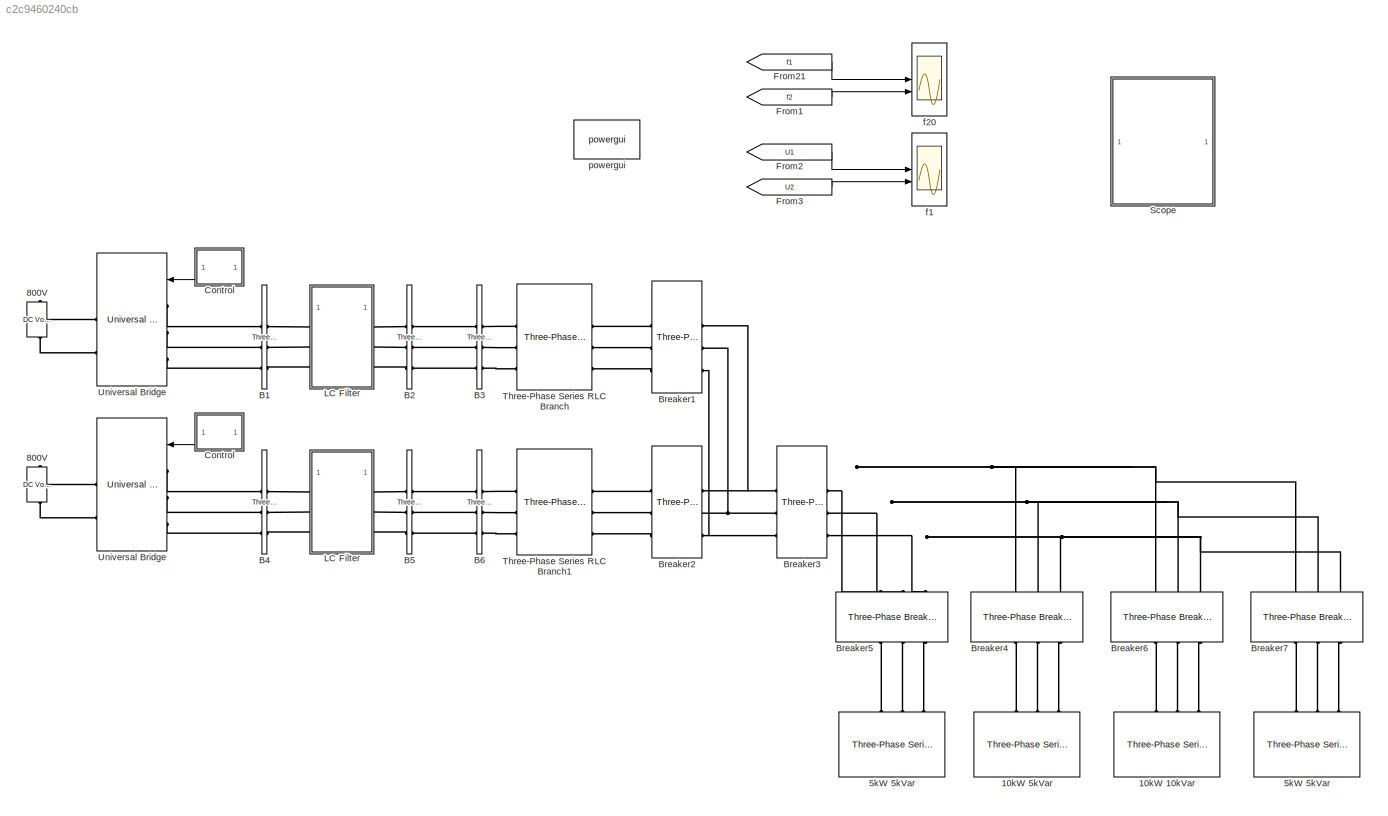
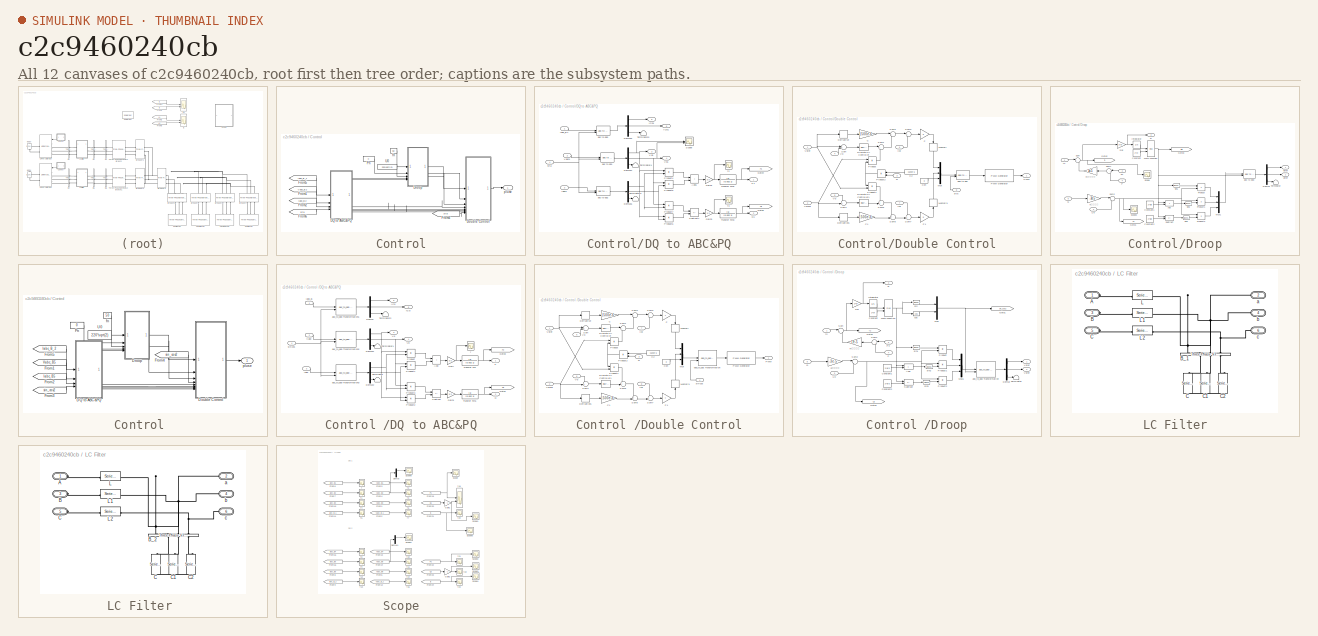
[diagram: thumbnail index - all 12 canvases of the model, root first then tree order]
MODEL slx_c2c9460240cb
KIND model
CONFIG AbsTol = auto
CONFIG EnableMultiTasking = on
CONFIG FixedStep = auto
CONFIG MaxStep = auto
CONFIG MinStep = auto
CONFIG RelTol = 1e-3
CONFIG SampleTimeConstraint = Unconstrained
CONFIG SolverName = ode113
CONFIG StartTime = 0.0
CONFIG StopTime = 1.5
BLOCK [Reference] 10kW 10kVar  REF=spsThreePhaseSeriesRLCLoadLib/Three-Phase
Series RLC Load
  AttributesFormatString = \n
  NameLocation = right
  SourceBlock = spsThreePhaseSeriesRLCLoadLib/Three-Phase\nSeries RLC Load
  SourceType = Three-Phase Series RLC Load
BLOCK [Reference] 10kW 5kVar  REF=spsThreePhaseSeriesRLCLoadLib/Three-Phase
Series RLC Load
  AttributesFormatString = \n
  NameLocation = right
  SourceBlock = spsThreePhaseSeriesRLCLoadLib/Three-Phase\nSeries RLC Load
  SourceType = Three-Phase Series RLC Load
BLOCK [Reference] 5kW 5kVar  REF=spsThreePhaseSeriesRLCLoadLib/Three-Phase
Series RLC Load
  AttributesFormatString = \n
  NameLocation = right
  SourceBlock = spsThreePhaseSeriesRLCLoadLib/Three-Phase\nSeries RLC Load
  SourceType = Three-Phase Series RLC Load
BLOCK [Reference] 5kW 5kVar   REF=spsThreePhaseSeriesRLCLoadLib/Three-Phase
Series RLC Load
  AttributesFormatString = \n
  NameLocation = right
  SourceBlock = spsThreePhaseSeriesRLCLoadLib/Three-Phase\nSeries RLC Load
  SourceType = Three-Phase Series RLC Load
BLOCK [Reference] 800V  REF=spsDCVoltageSourceLib/DC Voltage Source
  NameLocation = right
  SourceBlock = spsDCVoltageSourceLib/DC Voltage Source
  SourceType = DC Voltage Source
BLOCK [Reference] 800V   REF=spsDCVoltageSourceLib/DC Voltage Source
  NameLocation = right
  SourceBlock = spsDCVoltageSourceLib/DC Voltage Source
  SourceType = DC Voltage Source
BLOCK [Reference] B1  REF=spsThreePhaseVIMeasurementLib/Three-Phase
V-I Measurement
  SourceBlock = spsThreePhaseVIMeasurementLib/Three-Phase\nV-I Measurement
  SourceType = Three-Phase VI Measurement
BLOCK [Reference] B2  REF=spsThreePhaseVIMeasurementLib/Three-Phase
V-I Measurement
  SourceBlock = spsThreePhaseVIMeasurementLib/Three-Phase\nV-I Measurement
  SourceType = Three-Phase VI Measurement
BLOCK [Reference] B3  REF=spsThreePhaseVIMeasurementLib/Three-Phase
V-I Measurement
  SourceBlock = spsThreePhaseVIMeasurementLib/Three-Phase\nV-I Measurement
  SourceType = Three-Phase VI Measurement
BLOCK [Reference] B4  REF=spsThreePhaseVIMeasurementLib/Three-Phase
V-I Measurement
  SourceBlock = spsThreePhaseVIMeasurementLib/Three-Phase\nV-I Measurement
  SourceType = Three-Phase VI Measurement
BLOCK [Reference] B5  REF=spsThreePhaseVIMeasurementLib/Three-Phase
V-I Measurement
  SourceBlock = spsThreePhaseVIMeasurementLib/Three-Phase\nV-I Measurement
  SourceType = Three-Phase VI Measurement
BLOCK [Reference] B6  REF=spsThreePhaseVIMeasurementLib/Three-Phase
V-I Measurement
  SourceBlock = spsThreePhaseVIMeasurementLib/Three-Phase\nV-I Measurement
  SourceType = Three-Phase VI Measurement
BLOCK [Reference] Breaker1  REF=spsThreePhaseBreakerLib/Three-Phase Breaker
  SourceBlock = spsThreePhaseBreakerLib/Three-Phase Breaker
  SourceType = Three-Phase Breaker
BLOCK [Reference] Breaker2  REF=spsThreePhaseBreakerLib/Three-Phase Breaker
  SourceBlock = spsThreePhaseBreakerLib/Three-Phase Breaker
  SourceType = Three-Phase Breaker
BLOCK [Reference] Breaker3  REF=spsThreePhaseBreakerLib/Three-Phase Breaker
  SourceBlock = spsThreePhaseBreakerLib/Three-Phase Breaker
  SourceType = Three-Phase Breaker
BLOCK [Reference] Breaker4  REF=spsThreePhaseBreakerLib/Three-Phase Breaker
  NameLocation = left
  SourceBlock = spsThreePhaseBreakerLib/Three-Phase Breaker
  SourceType = Three-Phase Breaker
BLOCK [Reference] Breaker5  REF=spsThreePhaseBreakerLib/Three-Phase Breaker
  NameLocation = left
  SourceBlock = spsThreePhaseBreakerLib/Three-Phase Breaker
  SourceType = Three-Phase Breaker
BLOCK [Reference] Breaker6  REF=spsThreePhaseBreakerLib/Three-Phase Breaker
  NameLocation = left
  SourceBlock = spsThreePhaseBreakerLib/Three-Phase Breaker
  SourceType = Three-Phase Breaker
BLOCK [Reference] Breaker7  REF=spsThreePhaseBreakerLib/Three-Phase Breaker
  NameLocation = left
  SourceBlock = spsThreePhaseBreakerLib/Three-Phase Breaker
  SourceType = Three-Phase Breaker
BLOCK [SubSystem] Control
BLOCK [SubSystem] Control 
BLOCK [SubSystem] Control /DQ to ABC&PQ
BLOCK [Sum] Control /DQ to ABC&PQ/Add
  IconShape = rectangular
BLOCK [Demux] Control /DQ to ABC&PQ/Demux
  Outputs = 3
BLOCK [Demux] Control /DQ to ABC&PQ/Demux1
  Outputs = 3
BLOCK [Demux] Control /DQ to ABC&PQ/Demux2
  Outputs = 3
BLOCK [Gain] Control /DQ to ABC&PQ/Gain
  Gain = 3/2
BLOCK [Gain] Control /DQ to ABC&PQ/Gain1
  Gain = 3/2
BLOCK [Goto] Control /DQ to ABC&PQ/Goto1
  GotoTag = Q2
  TagVisibility = global
BLOCK [Goto] Control /DQ to ABC&PQ/Goto3
  GotoTag = P2
  TagVisibility = global
BLOCK [Outport] Control /DQ to ABC&PQ/ICd
  Port = 5
  VectorParamsAs1DForOutWhenUnconnected = off
BLOCK [Outport] Control /DQ to ABC&PQ/ICq
  Port = 6
  VectorParamsAs1DForOutWhenUnconnected = off
BLOCK [Inport] Control /DQ to ABC&PQ/Iabc
  Port = 3
BLOCK [Inport] Control /DQ to ABC&PQ/Iabc_B
BLOCK [Outport] Control /DQ to ABC&PQ/P
  VectorParamsAs1DForOutWhenUnconnected = off
BLOCK [Product] Control /DQ to ABC&PQ/Product
  RndMeth = Zero
BLOCK [Product] Control /DQ to ABC&PQ/Product1
  RndMeth = Zero
BLOCK [Product] Control /DQ to ABC&PQ/Product2
  RndMeth = Zero
BLOCK [Product] Control /DQ to ABC&PQ/Product3
  RndMeth = Zero
BLOCK [Outport] Control /DQ to ABC&PQ/Q
  Port = 2
  VectorParamsAs1DForOutWhenUnconnected = off
BLOCK [Sum] Control /DQ to ABC&PQ/Subtract
  IconShape = rectangular
  Inputs = +-
BLOCK [Terminator] Control /DQ to ABC&PQ/Terminator
BLOCK [Terminator] Control /DQ to ABC&PQ/Terminator1
BLOCK [Terminator] Control /DQ to ABC&PQ/Terminator2
BLOCK [TransferFcn] Control /DQ to ABC&PQ/Transfer Fcn
  Denominator = [0.002 1]
BLOCK [TransferFcn] Control /DQ to ABC&PQ/Transfer Fcn1
  Denominator = [0.002 1]
BLOCK [Inport] Control /DQ to ABC&PQ/Vabc
  Port = 2
BLOCK [Outport] Control /DQ to ABC&PQ/Vd
  Port = 3
  VectorParamsAs1DForOutWhenUnconnected = off
BLOCK [Outport] Control /DQ to ABC&PQ/Vq
  Port = 4
  VectorParamsAs1DForOutWhenUnconnected = off
BLOCK [Reference] Control /DQ to ABC&PQ/abc_to_dq0 Transformation1  REF=powerlib_extras/Measurements/abc_to_dq0
Transformation
  SourceBlock = powerlib_extras/Measurements/abc_to_dq0\nTransformation
  SourceType = abc to dq0 Transformation
BLOCK [Reference] Control /DQ to ABC&PQ/abc_to_dq0 Transformation2  REF=powerlib_extras/Measurements/abc_to_dq0
Transformation
  SourceBlock = powerlib_extras/Measurements/abc_to_dq0\nTransformation
  SourceType = abc to dq0 Transformation
BLOCK [Reference] Control /DQ to ABC&PQ/abc_to_dq0 Transformation3  REF=powerlib_extras/Measurements/abc_to_dq0
Transformation
  SourceBlock = powerlib_extras/Measurements/abc_to_dq0\nTransformation
  SourceType = abc to dq0 Transformation
BLOCK [Scope] Control /DQ to ABC&PQ/f
  Floating = off
  NumInputPorts = 1
  ScopeSpecificationString = C++SS(StrPVP('Location','[35, 156, 1315, 1091]'),StrPVP('Open','off'),MxPVP('AxesTitles',54,'struct(''axes1'',''%<SignalLabel>'')'),MxPVP('ScopeGraphics',57,'struct(''FigureColor'',''[0.5 0.5 0.5]'',''AxesColor'',''[0 0 0]'',''AxesTickColor'',''[1 1 1]'',''LineColors'',''[1 1 0;1 0 1;0 1 1;1 0 0;0 1 0;0 0 1]'',''LineStyles'',''-|-|-|-|-|-'',''LineWidths'',''[0.5 0.5 0.5 0.5 0.5 0.5]'',''MarkerStyl...<+291ch>
BLOCK [Inport] Control /DQ to ABC&PQ/sin-cos
  Port = 4
BLOCK [SubSystem] Control /Double Control
BLOCK [Gain] Control /Double Control/C
  Gain = 1500e-6
BLOCK [Gain] Control /Double Control/C1
  Gain = 1500e-6
BLOCK [Constant] Control /Double Control/C2
  Value = 1500e-6
BLOCK [Constant] Control /Double Control/Con
  Value = 0
BLOCK [Derivative] Control /Double Control/Derivative
BLOCK [Derivative] Control /Double Control/Derivative1
BLOCK [Reference] Control /Double Control/Discrete PI Controller  REF=powerlib_extras/Discrete 
Control Blocks/Discrete
PI Controller
  SourceBlock = powerlib_extras/Discrete \nControl Blocks/Discrete\nPI Controller
  SourceType = Discrete PI Controller
BLOCK [Reference] Control /Double Control/Discrete PI Controller1  REF=powerlib_extras/Discrete 
Control Blocks/Discrete
PI Controller
  SourceBlock = powerlib_extras/Discrete \nControl Blocks/Discrete\nPI Controller
  SourceType = Discrete PI Controller
BLOCK [Inport] Control /Double Control/Icd
  Port = 7
BLOCK [Inport] Control /Double Control/Icq
  Port = 8
BLOCK [Memory] Control /Double Control/Memory
  NameLocation = left
BLOCK [Memory] Control /Double Control/Memory1
  NameLocation = right
BLOCK [Mux] Control /Double Control/Mux
  DisplayOption = bar
  Inputs = 3
BLOCK [Gain] Control /Double Control/P
  Gain = 7
BLOCK [Gain] Control /Double Control/P1
  Gain = 7
BLOCK [Outport] Control /Double Control/PWM
  VectorParamsAs1DForOutWhenUnconnected = off
BLOCK [Reference] Control /Double Control/PWM Generator  REF=powerlib_extras/Control 
Blocks/PWM Generator
  SourceBlock = powerlib_extras/Control \nBlocks/PWM Generator
  SourceType = PWM Generator
BLOCK [Product] Control /Double Control/Product
  RndMeth = Zero
BLOCK [Product] Control /Double Control/Product1
  RndMeth = Zero
BLOCK [Product] Control /Double Control/Product2
  NameLocation = top
  RndMeth = Zero
BLOCK [Sum] Control /Double Control/Sum
  Inputs = |+-
BLOCK [Sum] Control /Double Control/Sum1
  Inputs = |+-
BLOCK [Sum] Control /Double Control/Sum2
  Inputs = |++
BLOCK [Sum] Control /Double Control/Sum3
  Inputs = |+-
BLOCK [Sum] Control /Double Control/Sum4
  Inputs = -+|
BLOCK [Sum] Control /Double Control/Sum5
  Inputs = ++|
BLOCK [Sum] Control /Double Control/Sum6
  Inputs = ++|
BLOCK [Sum] Control /Double Control/Sum7
  Inputs = -+|
BLOCK [Inport] Control /Double Control/Vd
  Port = 5
BLOCK [Inport] Control /Double Control/Vdref
BLOCK [Inport] Control /Double Control/Vq
  Port = 6
BLOCK [Inport] Control /Double Control/Vqrenf
  Port = 2
BLOCK [Reference] Control /Double Control/dq0_to_abc Transformation  REF=powerlib_extras/Measurements/dq0_to_abc
Transformation
  SourceBlock = powerlib_extras/Measurements/dq0_to_abc\nTransformation
  SourceType = dq0 to abc Transformation
BLOCK [Inport] Control /Double Control/sin-cos
  Port = 4
BLOCK [Inport] Control /Double Control/w
  Port = 3
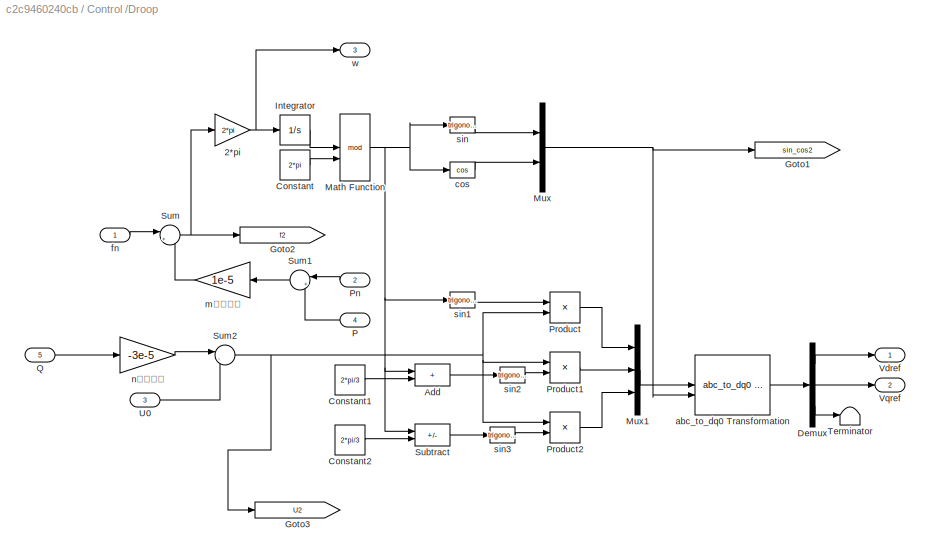
BLOCK [SubSystem] Control /Droop
BLOCK [Gain] Control /Droop/2*pi
  Gain = 2*pi
BLOCK [Sum] Control /Droop/Add
  IconShape = rectangular
BLOCK [Constant] Control /Droop/Constant
  Value = 2*pi
BLOCK [Constant] Control /Droop/Constant1
  Value = 2*pi/3
BLOCK [Constant] Control /Droop/Constant2
  Value = 2*pi/3
BLOCK [Demux] Control /Droop/Demux
  Outputs = 3
BLOCK [Goto] Control /Droop/Goto1
  GotoTag = sin_cos2
  TagVisibility = global
BLOCK [Goto] Control /Droop/Goto2
  GotoTag = f2
  TagVisibility = global
BLOCK [Goto] Control /Droop/Goto3
  GotoTag = U2
  TagVisibility = global
BLOCK [Integrator] Control /Droop/Integrator
BLOCK [Math] Control /Droop/Math Function
  Operator = mod
  SignedPower = on
BLOCK [Mux] Control /Droop/Mux
  DisplayOption = bar
  Inputs = 2
BLOCK [Mux] Control /Droop/Mux1
  DisplayOption = bar
  Inputs = 3
BLOCK [Inport] Control /Droop/P
  Port = 4
BLOCK [Inport] Control /Droop/Pn
  Port = 2
BLOCK [Product] Control /Droop/Product
  RndMeth = Zero
BLOCK [Product] Control /Droop/Product1
  RndMeth = Zero
BLOCK [Product] Control /Droop/Product2
  RndMeth = Zero
BLOCK [Inport] Control /Droop/Q
  Port = 5
BLOCK [Sum] Control /Droop/Subtract
  IconShape = rectangular
  Inputs = +-
BLOCK [Sum] Control /Droop/Sum
  Inputs = |++
BLOCK [Sum] Control /Droop/Sum1
  Inputs = |+-
  NameLocation = top
BLOCK [Sum] Control /Droop/Sum2
  Inputs = |-+
BLOCK [Terminator] Control /Droop/Terminator
BLOCK [Inport] Control /Droop/U0
  Port = 3
BLOCK [Outport] Control /Droop/Vdref
  VectorParamsAs1DForOutWhenUnconnected = off
BLOCK [Outport] Control /Droop/Vqref
  Port = 2
  VectorParamsAs1DForOutWhenUnconnected = off
BLOCK [Reference] Control /Droop/abc_to_dq0 Transformation  REF=powerlib_extras/Measurements/abc_to_dq0
Transformation
  SourceBlock = powerlib_extras/Measurements/abc_to_dq0\nTransformation
  SourceType = abc to dq0 Transformation
BLOCK [Trigonometry] Control /Droop/cos
  Operator = cos
BLOCK [Inport] Control /Droop/fn
BLOCK [Gain] Control /Droop/m下垂系数
  Gain = 1e-5
  NameLocation = top
BLOCK [Gain] Control /Droop/n下垂系数
  Gain = -3e-5
BLOCK [Trigonometry] Control /Droop/sin
BLOCK [Trigonometry] Control /Droop/sin1
BLOCK [Trigonometry] Control /Droop/sin2
BLOCK [Trigonometry] Control /Droop/sin3
BLOCK [Outport] Control /Droop/w
  Port = 3
  VectorParamsAs1DForOutWhenUnconnected = off
BLOCK [From] Control /From1
  GotoTag = Vabc_B5
  TagVisibility = global
BLOCK [From] Control /From2
  GotoTag = Iabc_B5
  TagVisibility = global
BLOCK [From] Control /From3
  GotoTag = sin_cos2
  TagVisibility = global
BLOCK [From] Control /From4
  GotoTag = sin_cos2
  TagVisibility = global
BLOCK [From] Control /From5
  GotoTag = Iabc_B_2
  TagVisibility = global
BLOCK [Constant] Control /Pn
  Value = 0
BLOCK [Constant] Control /U0
  Value = 220*sqrt(2)
BLOCK [Constant] Control /fn
  Value = 50
BLOCK [Outport] Control /pluse
  VectorParamsAs1DForOutWhenUnconnected = off
BLOCK [SubSystem] Control/DQ to ABC&PQ
BLOCK [Sum] Control/DQ to ABC&PQ/Add1
  IconShape = rectangular
BLOCK [Demux] Control/DQ to ABC&PQ/Demux3
  Outputs = 3
BLOCK [Demux] Control/DQ to ABC&PQ/Demux4
  Outputs = 3
BLOCK [Demux] Control/DQ to ABC&PQ/Demux5
  Outputs = 3
BLOCK [Gain] Control/DQ to ABC&PQ/Gain2
  Gain = 3/2
BLOCK [Gain] Control/DQ to ABC&PQ/Gain3
  Gain = 3/2
BLOCK [Goto] Control/DQ to ABC&PQ/Goto2
  GotoTag = Q1
  TagVisibility = global
BLOCK [Goto] Control/DQ to ABC&PQ/Goto4
  GotoTag = P1
  TagVisibility = global
BLOCK [Outport] Control/DQ to ABC&PQ/ICd1
  Port = 5
  VectorParamsAs1DForOutWhenUnconnected = off
BLOCK [Outport] Control/DQ to ABC&PQ/ICq1
  Port = 6
  VectorParamsAs1DForOutWhenUnconnected = off
BLOCK [Inport] Control/DQ to ABC&PQ/Iabc1
  Port = 3
BLOCK [Inport] Control/DQ to ABC&PQ/Iabc_B1
BLOCK [Outport] Control/DQ to ABC&PQ/P1
  VectorParamsAs1DForOutWhenUnconnected = off
BLOCK [Product] Control/DQ to ABC&PQ/Product4
  RndMeth = Zero
BLOCK [Product] Control/DQ to ABC&PQ/Product5
  RndMeth = Zero
BLOCK [Product] Control/DQ to ABC&PQ/Product6
  RndMeth = Zero
BLOCK [Product] Control/DQ to ABC&PQ/Product7
  RndMeth = Zero
BLOCK [Outport] Control/DQ to ABC&PQ/Q1
  Port = 2
  VectorParamsAs1DForOutWhenUnconnected = off
BLOCK [Scope] Control/DQ to ABC&PQ/Scope
  Floating = off
  NumInputPorts = 2
  ScopeSpecificationString = Simulink.scopes.TimeScopeBlockCfg('CurrentConfiguration', extmgr.ConfigurationSet(extmgr.Configuration('Core','General UI',true),extmgr.Configuration('Core','Source UI',true),extmgr.Configuration('Sources','WiredSimulink',true,'DataLoggingVariableName','ScopeData1'),extmgr.Configuration('Visuals','Time Domain',true,'SerializedDisplays',{struct('MinYLimReal','-397.2902','MaxYLimReal','461.80826','Y...<+2200ch>
BLOCK [Sum] Control/DQ to ABC&PQ/Subtract1
  IconShape = rectangular
  Inputs = +-
BLOCK [Terminator] Control/DQ to ABC&PQ/Terminator3
BLOCK [Terminator] Control/DQ to ABC&PQ/Terminator4
BLOCK [Terminator] Control/DQ to ABC&PQ/Terminator5
BLOCK [TransferFcn] Control/DQ to ABC&PQ/Transfer Fcn2
  Denominator = [0.002 1]
BLOCK [TransferFcn] Control/DQ to ABC&PQ/Transfer Fcn3
  Denominator = [0.002 1]
BLOCK [Inport] Control/DQ to ABC&PQ/Vabc1
  Port = 2
BLOCK [Outport] Control/DQ to ABC&PQ/Vd1
  Port = 3
  VectorParamsAs1DForOutWhenUnconnected = off
BLOCK [Outport] Control/DQ to ABC&PQ/Vq1
  Port = 4
  VectorParamsAs1DForOutWhenUnconnected = off
BLOCK [Reference] Control/DQ to ABC&PQ/abc to dq0  REF=spsabctodq0Lib/abc to dq0
  SourceBlock = spsabctodq0Lib/abc to dq0
  SourceType = abc to dq0 Transformation
BLOCK [Reference] Control/DQ to ABC&PQ/abc to dq1  REF=spsabctodq0Lib/abc to dq0
  SourceBlock = spsabctodq0Lib/abc to dq0
  SourceType = abc to dq0 Transformation
BLOCK [Reference] Control/DQ to ABC&PQ/abc to dq2  REF=spsabctodq0Lib/abc to dq0
  SourceBlock = spsabctodq0Lib/abc to dq0
  SourceType = abc to dq0 Transformation
BLOCK [Scope] Control/DQ to ABC&PQ/f2
  Floating = off
  NumInputPorts = 1
  ScopeSpecificationString = Simulink.scopes.TimeScopeBlockCfg('CurrentConfiguration', extmgr.ConfigurationSet(extmgr.Configuration('Core','General UI',true),extmgr.Configuration('Core','Source UI',true),extmgr.Configuration('Sources','WiredSimulink',true,'DataLoggingVariableName','ScopeData1','DataLoggingSaveFormat','StructureWithTime','DataLoggingDecimation','1','DataLoggingDecimateData',true),extmgr.Configuration('Visuals'...<+1607ch>
BLOCK [Scope] Control/DQ to ABC&PQ/f3
  Floating = off
  NumInputPorts = 1
  ScopeSpecificationString = Simulink.scopes.TimeScopeBlockCfg('CurrentConfiguration', extmgr.ConfigurationSet(extmgr.Configuration('Core','General UI',true),extmgr.Configuration('Core','Source UI',true),extmgr.Configuration('Sources','WiredSimulink',true,'DataLoggingVariableName','ScopeData2','DataLoggingSaveFormat','StructureWithTime','DataLoggingDecimation','1','DataLoggingDecimateData',true),extmgr.Configuration('Visuals'...<+1607ch>
BLOCK [Inport] Control/DQ to ABC&PQ/sita
  Port = 4
BLOCK [SubSystem] Control/Double Control
BLOCK [Gain] Control/Double Control/C
  Gain = 1500e-6
BLOCK [Gain] Control/Double Control/C1
  Gain = 1500e-6
BLOCK [Constant] Control/Double Control/C2
  Value = 1500e-6
BLOCK [Constant] Control/Double Control/Con
  Value = 0
BLOCK [Derivative] Control/Double Control/Derivative
BLOCK [Derivative] Control/Double Control/Derivative1
BLOCK [Reference] Control/Double Control/Discrete PI Controller  REF=powerlib_extras/Discrete 
Control Blocks/Discrete
PI Controller
  SourceBlock = powerlib_extras/Discrete \nControl Blocks/Discrete\nPI Controller
  SourceType = Discrete PI Controller
BLOCK [Reference] Control/Double Control/Discrete PI Controller1  REF=powerlib_extras/Discrete 
Control Blocks/Discrete
PI Controller
  SourceBlock = powerlib_extras/Discrete \nControl Blocks/Discrete\nPI Controller
  SourceType = Discrete PI Controller
BLOCK [Inport] Control/Double Control/Icd
  Port = 6
BLOCK [Inport] Control/Double Control/Icq
  Port = 7
BLOCK [Memory] Control/Double Control/Memory
  NameLocation = left
BLOCK [Memory] Control/Double Control/Memory1
  NameLocation = right
BLOCK [Mux] Control/Double Control/Mux
  DisplayOption = bar
  Inputs = 3
BLOCK [Gain] Control/Double Control/P
  Gain = 5
BLOCK [Gain] Control/Double Control/P1
  Gain = 5
BLOCK [Outport] Control/Double Control/PWM
  VectorParamsAs1DForOutWhenUnconnected = off
BLOCK [Reference] Control/Double Control/PWM Generator  REF=powerlib_extras/Control 
Blocks/PWM Generator
  SourceBlock = powerlib_extras/Control \nBlocks/PWM Generator
  SourceType = PWM Generator
BLOCK [Product] Control/Double Control/Product
  RndMeth = Zero
BLOCK [Product] Control/Double Control/Product1
  RndMeth = Zero
BLOCK [Product] Control/Double Control/Product2
  NameLocation = top
  RndMeth = Zero
BLOCK [Sum] Control/Double Control/Sum
  Inputs = |+-
BLOCK [Sum] Control/Double Control/Sum1
  Inputs = |+-
BLOCK [Sum] Control/Double Control/Sum2
  Inputs = |++
BLOCK [Sum] Control/Double Control/Sum3
  Inputs = |+-
BLOCK [Sum] Control/Double Control/Sum4
  Inputs = -+|
BLOCK [Sum] Control/Double Control/Sum5
  Inputs = ++|
BLOCK [Sum] Control/Double Control/Sum6
  Inputs = ++|
BLOCK [Sum] Control/Double Control/Sum7
  Inputs = -+|
BLOCK [Inport] Control/Double Control/Vd
  Port = 4
BLOCK [Inport] Control/Double Control/Vdref
BLOCK [Inport] Control/Double Control/Vq
  Port = 5
BLOCK [Inport] Control/Double Control/Vqrenf
  Port = 2
BLOCK [Reference] Control/Double Control/dq0 to abc  REF=spsdq0toabcLib/dq0 to abc
  SourceBlock = spsdq0toabcLib/dq0 to abc
  SourceType = dq0 to abc Transformation
BLOCK [Inport] Control/Double Control/sita
  Port = 8
BLOCK [Inport] Control/Double Control/w
  Port = 3
BLOCK [SubSystem] Control/Droop
BLOCK [Gain] Control/Droop/2*pi
  Gain = 2*pi
BLOCK [Sum] Control/Droop/Add
  IconShape = rectangular
BLOCK [Constant] Control/Droop/Constant
  Value = 2*pi
BLOCK [Constant] Control/Droop/Constant1
  Value = 2*pi/3
BLOCK [Constant] Control/Droop/Constant2
  Value = 2*pi/3
BLOCK [Demux] Control/Droop/Demux
  Outputs = 3
BLOCK [Goto] Control/Droop/Goto1
  GotoTag = U1
  TagVisibility = global
BLOCK [Goto] Control/Droop/Goto2
  GotoTag = f1
  TagVisibility = global
BLOCK [Goto] Control/Droop/Goto3
  GotoTag = sita
  TagVisibility = global
BLOCK [Integrator] Control/Droop/Integrator
BLOCK [Math] Control/Droop/Math Function
  Operator = mod
  SignedPower = on
BLOCK [Mux] Control/Droop/Mux1
  DisplayOption = bar
  Inputs = 3
BLOCK [Inport] Control/Droop/P
  Port = 4
BLOCK [Inport] Control/Droop/Pn
  Port = 2
BLOCK [Product] Control/Droop/Product
  RndMeth = Zero
BLOCK [Product] Control/Droop/Product1
  RndMeth = Zero
BLOCK [Product] Control/Droop/Product2
  RndMeth = Zero
BLOCK [Inport] Control/Droop/Q
  Port = 5
BLOCK [Scope] Control/Droop/Scope
  Floating = off
  NumInputPorts = 1
  ScopeSpecificationString = Simulink.scopes.TimeScopeBlockCfg('CurrentConfiguration', extmgr.ConfigurationSet(extmgr.Configuration('Core','General UI',true),extmgr.Configuration('Core','Source UI',true),extmgr.Configuration('Sources','WiredSimulink',true,'DataLoggingVariableName','ScopeData3','DataLoggingSaveFormat','Array','DataLoggingDecimation','1'),extmgr.Configuration('Visuals','Time Domain',true,'SerializedDisplays',{s...<+1675ch>
BLOCK [Scope] Control/Droop/Scope2
  Floating = off
  NumInputPorts = 1
  ScopeSpecificationString = Simulink.scopes.TimeScopeBlockCfg('CurrentConfiguration', extmgr.ConfigurationSet(extmgr.Configuration('Core','General UI',true),extmgr.Configuration('Core','Source UI',true),extmgr.Configuration('Sources','WiredSimulink',true,'DataLoggingVariableName','ScopeData5','DataLoggingSaveFormat','Array','DataLoggingDecimation','1'),extmgr.Configuration('Visuals','Time Domain',true,'SerializedDisplays',{s...<+1638ch>
BLOCK [Sum] Control/Droop/Subtract
  IconShape = rectangular
  Inputs = +-
BLOCK [Sum] Control/Droop/Sum
  Inputs = |++
BLOCK [Sum] Control/Droop/Sum1
  Inputs = |+-
  NameLocation = top
BLOCK [Sum] Control/Droop/Sum2
  Inputs = |-+
BLOCK [Terminator] Control/Droop/Terminator
BLOCK [Inport] Control/Droop/U0
  Port = 3
BLOCK [Outport] Control/Droop/Vdref
  VectorParamsAs1DForOutWhenUnconnected = off
BLOCK [Outport] Control/Droop/Vqref
  Port = 2
  VectorParamsAs1DForOutWhenUnconnected = off
BLOCK [Reference] Control/Droop/abc to dq0  REF=spsabctodq0Lib/abc to dq0
  SourceBlock = spsabctodq0Lib/abc to dq0
  SourceType = abc to dq0 Transformation
BLOCK [Inport] Control/Droop/fn
BLOCK [Gain] Control/Droop/m下垂系数
  Gain = 1e-5
  NameLocation = top
BLOCK [Gain] Control/Droop/n下垂系数
  Gain = -3e-5
BLOCK [Trigonometry] Control/Droop/sin1
BLOCK [Trigonometry] Control/Droop/sin2
BLOCK [Trigonometry] Control/Droop/sin3
BLOCK [Outport] Control/Droop/w
  Port = 3
  VectorParamsAs1DForOutWhenUnconnected = off
BLOCK [From] Control/From1
  GotoTag = Vabc_B2
  TagVisibility = global
BLOCK [From] Control/From2
  GotoTag = Iabc_B2
  TagVisibility = global
BLOCK [From] Control/From4
  GotoTag = sita
  TagVisibility = global
BLOCK [From] Control/From5
  GotoTag = Iabc_B_1
  TagVisibility = global
BLOCK [From] Control/From6
  GotoTag = sita
  TagVisibility = global
BLOCK [Constant] Control/Pn
  Value = 0
BLOCK [Constant] Control/U0
  Value = 220*sqrt(2)
BLOCK [Constant] Control/fn
  Value = 50
BLOCK [Outport] Control/pluse
  VectorParamsAs1DForOutWhenUnconnected = off
BLOCK [From] From1
  GotoTag = f2
  TagVisibility = global
BLOCK [From] From2
  GotoTag = U1
  TagVisibility = global
BLOCK [From] From21
  GotoTag = f1
  TagVisibility = global
BLOCK [From] From3
  GotoTag = U2
  TagVisibility = global
BLOCK [SubSystem] LC Filter
BLOCK [SubSystem] LC Filter 
BLOCK [Reference] LC Filter / B_2  REF=spsThreePhaseVIMeasurementLib/Three-Phase
V-I Measurement
  NameLocation = right
  SourceBlock = spsThreePhaseVIMeasurementLib/Three-Phase\nV-I Measurement
  SourceType = Three-Phase VI Measurement
BLOCK [PMIOPort] LC Filter /A
  Side = Left
BLOCK [PMIOPort] LC Filter /B
  Port = 3
  Side = Left
BLOCK [Reference] LC Filter /C  REF=spsSeriesRLCBranchLib/Series RLC Branch
  NameLocation = left
  SourceBlock = spsSeriesRLCBranchLib/Series RLC Branch
  SourceType = Series RLC Branch
BLOCK [PMIOPort] LC Filter /C 
  Port = 5
  Side = Left
BLOCK [Reference] LC Filter /C1  REF=spsSeriesRLCBranchLib/Series RLC Branch
  NameLocation = left
  SourceBlock = spsSeriesRLCBranchLib/Series RLC Branch
  SourceType = Series RLC Branch
BLOCK [Reference] LC Filter /C2  REF=spsSeriesRLCBranchLib/Series RLC Branch
  NameLocation = left
  SourceBlock = spsSeriesRLCBranchLib/Series RLC Branch
  SourceType = Series RLC Branch
BLOCK [Reference] LC Filter /L  REF=spsSeriesRLCBranchLib/Series RLC Branch
  SourceBlock = spsSeriesRLCBranchLib/Series RLC Branch
  SourceType = Series RLC Branch
BLOCK [Reference] LC Filter /L1  REF=spsSeriesRLCBranchLib/Series RLC Branch
  SourceBlock = spsSeriesRLCBranchLib/Series RLC Branch
  SourceType = Series RLC Branch
BLOCK [Reference] LC Filter /L2  REF=spsSeriesRLCBranchLib/Series RLC Branch
  SourceBlock = spsSeriesRLCBranchLib/Series RLC Branch
  SourceType = Series RLC Branch
BLOCK [PMIOPort] LC Filter /a
  Port = 2
  Side = Right
BLOCK [PMIOPort] LC Filter /b
  Port = 4
  Side = Right
BLOCK [PMIOPort] LC Filter /c
  Port = 6
  Side = Right
BLOCK [Reference] LC Filter/ B_1  REF=spsThreePhaseVIMeasurementLib/Three-Phase
V-I Measurement
  NameLocation = right
  SourceBlock = spsThreePhaseVIMeasurementLib/Three-Phase\nV-I Measurement
  SourceType = Three-Phase VI Measurement
BLOCK [PMIOPort] LC Filter/A
  Side = Left
BLOCK [PMIOPort] LC Filter/B
  Port = 3
  Side = Left
BLOCK [Reference] LC Filter/C  REF=spsSeriesRLCBranchLib/Series RLC Branch
  NameLocation = left
  SourceBlock = spsSeriesRLCBranchLib/Series RLC Branch
  SourceType = Series RLC Branch
BLOCK [PMIOPort] LC Filter/C 
  Port = 5
  Side = Left
BLOCK [Reference] LC Filter/C1  REF=spsSeriesRLCBranchLib/Series RLC Branch
  NameLocation = left
  SourceBlock = spsSeriesRLCBranchLib/Series RLC Branch
  SourceType = Series RLC Branch
BLOCK [Reference] LC Filter/C2  REF=spsSeriesRLCBranchLib/Series RLC Branch
  NameLocation = left
  SourceBlock = spsSeriesRLCBranchLib/Series RLC Branch
  SourceType = Series RLC Branch
BLOCK [Reference] LC Filter/L  REF=spsSeriesRLCBranchLib/Series RLC Branch
  SourceBlock = spsSeriesRLCBranchLib/Series RLC Branch
  SourceType = Series RLC Branch
BLOCK [Reference] LC Filter/L1  REF=spsSeriesRLCBranchLib/Series RLC Branch
  SourceBlock = spsSeriesRLCBranchLib/Series RLC Branch
  SourceType = Series RLC Branch
BLOCK [Reference] LC Filter/L2  REF=spsSeriesRLCBranchLib/Series RLC Branch
  SourceBlock = spsSeriesRLCBranchLib/Series RLC Branch
  SourceType = Series RLC Branch
BLOCK [PMIOPort] LC Filter/a
  Port = 2
  Side = Right
BLOCK [PMIOPort] LC Filter/b
  Port = 4
  Side = Right
BLOCK [PMIOPort] LC Filter/c
  Port = 6
  Side = Right
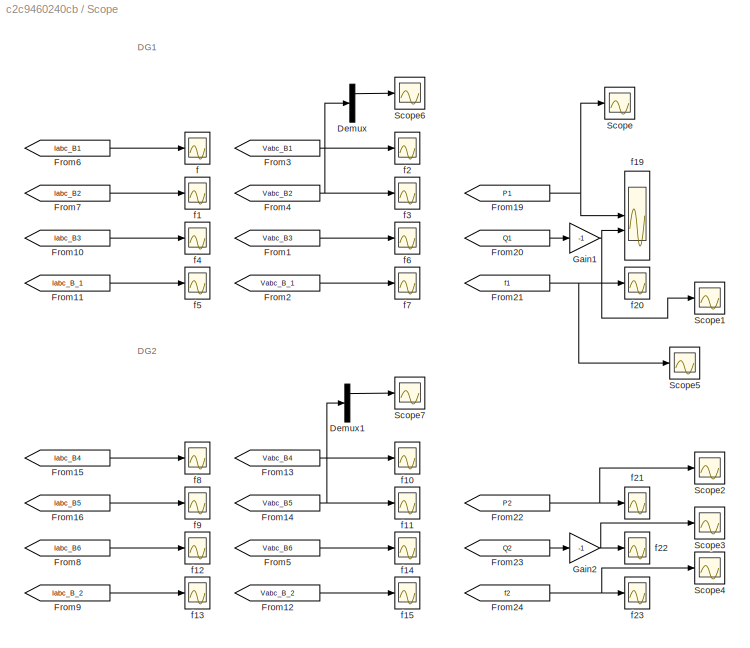
BLOCK [SubSystem] Scope
BLOCK [Demux] Scope/Demux
  Outputs = 3
BLOCK [Demux] Scope/Demux1
  Outputs = 3
BLOCK [From] Scope/From1
  GotoTag = Vabc_B3
  TagVisibility = global
BLOCK [From] Scope/From10
  GotoTag = Iabc_B3
  TagVisibility = global
BLOCK [From] Scope/From11
  GotoTag = Iabc_B_1
  TagVisibility = global
BLOCK [From] Scope/From12
  GotoTag = Vabc_B_2
  TagVisibility = global
BLOCK [From] Scope/From13
  GotoTag = Vabc_B4
  TagVisibility = global
BLOCK [From] Scope/From14
  GotoTag = Vabc_B5
  TagVisibility = global
BLOCK [From] Scope/From15
  GotoTag = Iabc_B4
  TagVisibility = global
BLOCK [From] Scope/From16
  GotoTag = Iabc_B5
  TagVisibility = global
BLOCK [From] Scope/From19
  GotoTag = P1
  TagVisibility = global
BLOCK [From] Scope/From2
  GotoTag = Vabc_B_1
  TagVisibility = global
BLOCK [From] Scope/From20
  GotoTag = Q1
  TagVisibility = global
BLOCK [From] Scope/From21
  GotoTag = f1
  TagVisibility = global
BLOCK [From] Scope/From22
  GotoTag = P2
  TagVisibility = global
BLOCK [From] Scope/From23
  GotoTag = Q2
  TagVisibility = global
BLOCK [From] Scope/From24
  GotoTag = f2
  TagVisibility = global
BLOCK [From] Scope/From3
  GotoTag = Vabc_B1
  TagVisibility = global
BLOCK [From] Scope/From4
  GotoTag = Vabc_B2
  TagVisibility = global
BLOCK [From] Scope/From5
  GotoTag = Vabc_B6
  TagVisibility = global
BLOCK [From] Scope/From6
  GotoTag = Iabc_B1
  TagVisibility = global
BLOCK [From] Scope/From7
  GotoTag = Iabc_B2
  TagVisibility = global
BLOCK [From] Scope/From8
  GotoTag = Iabc_B6
  TagVisibility = global
BLOCK [From] Scope/From9
  GotoTag = Iabc_B_2
  TagVisibility = global
BLOCK [Gain] Scope/Gain1
  Gain = -1
BLOCK [Gain] Scope/Gain2
  Gain = -1
BLOCK [Scope] Scope/Scope
  Floating = off
  NumInputPorts = 1
  ScopeSpecificationString = Simulink.scopes.TimeScopeBlockCfg('CurrentConfiguration', extmgr.ConfigurationSet(extmgr.Configuration('Core','General UI',true),extmgr.Configuration('Core','Source UI',true),extmgr.Configuration('Sources','WiredSimulink',true,'DataLoggingVariableName','P1','DataLogging',true,'DataLoggingSaveFormat','Array'),extmgr.Configuration('Visuals','Time Domain',true,'SerializedDisplays',{struct('MinYLimRea...<+1493ch>
BLOCK [Scope] Scope/Scope1
  Floating = off
  NumInputPorts = 1
  ScopeSpecificationString = Simulink.scopes.TimeScopeBlockCfg('CurrentConfiguration', extmgr.ConfigurationSet(extmgr.Configuration('Core','General UI',true),extmgr.Configuration('Core','Source UI',true),extmgr.Configuration('Sources','WiredSimulink',true,'DataLoggingVariableName','Q1','DataLogging',true,'DataLoggingSaveFormat','Array'),extmgr.Configuration('Visuals','Time Domain',true,'SerializedDisplays',{struct('MinYLimRea...<+1425ch>
BLOCK [Scope] Scope/Scope2
  Floating = off
  NumInputPorts = 1
  ScopeSpecificationString = Simulink.scopes.TimeScopeBlockCfg('CurrentConfiguration', extmgr.ConfigurationSet(extmgr.Configuration('Core','General UI',true),extmgr.Configuration('Core','Source UI',true),extmgr.Configuration('Sources','WiredSimulink',true,'DataLoggingVariableName','P2','DataLogging',true,'DataLoggingSaveFormat','Array'),extmgr.Configuration('Visuals','Time Domain',true,'SerializedDisplays',{struct('MinYLimRea...<+1459ch>
BLOCK [Scope] Scope/Scope3
  Floating = off
  NumInputPorts = 1
  ScopeSpecificationString = Simulink.scopes.TimeScopeBlockCfg('CurrentConfiguration', extmgr.ConfigurationSet(extmgr.Configuration('Core','General UI',true),extmgr.Configuration('Core','Source UI',true),extmgr.Configuration('Sources','WiredSimulink',true,'DataLoggingVariableName','Q2','DataLogging',true,'DataLoggingSaveFormat','Array'),extmgr.Configuration('Visuals','Time Domain',true,'SerializedDisplays',{struct('MinYLimRea...<+1456ch>
BLOCK [Scope] Scope/Scope4
  Floating = off
  NumInputPorts = 1
  ScopeSpecificationString = Simulink.scopes.TimeScopeBlockCfg('CurrentConfiguration', extmgr.ConfigurationSet(extmgr.Configuration('Core','General UI',true),extmgr.Configuration('Core','Source UI',true),extmgr.Configuration('Sources','WiredSimulink',true,'DataLoggingVariableName','f2','DataLogging',true,'DataLoggingSaveFormat','Array'),extmgr.Configuration('Visuals','Time Domain',true,'SerializedDisplays',{struct('MinYLimRea...<+1442ch>
BLOCK [Scope] Scope/Scope5
  Floating = off
  NumInputPorts = 1
  ScopeSpecificationString = Simulink.scopes.TimeScopeBlockCfg('CurrentConfiguration', extmgr.ConfigurationSet(extmgr.Configuration('Core','General UI',true),extmgr.Configuration('Core','Source UI',true),extmgr.Configuration('Sources','WiredSimulink',true,'DataLoggingVariableName','f1','DataLogging',true,'DataLoggingSaveFormat','Array'),extmgr.Configuration('Visuals','Time Domain',true,'SerializedDisplays',{struct('MinYLimRea...<+1442ch>
BLOCK [Scope] Scope/Scope6
  Floating = off
  NumInputPorts = 1
  ScopeSpecificationString = Simulink.scopes.TimeScopeBlockCfg('CurrentConfiguration', extmgr.ConfigurationSet(extmgr.Configuration('Core','General UI',true),extmgr.Configuration('Core','Source UI',true),extmgr.Configuration('Sources','WiredSimulink',true,'DataLoggingVariableName','Ua_B2','DataLogging',true),extmgr.Configuration('Visuals','Time Domain',true,'SerializedDisplays',{struct('MinYLimReal','-408.08687','MaxYLimReal'...<+1394ch>
BLOCK [Scope] Scope/Scope7
  Floating = off
  NumInputPorts = 1
  ScopeSpecificationString = Simulink.scopes.TimeScopeBlockCfg('CurrentConfiguration', extmgr.ConfigurationSet(extmgr.Configuration('Core','General UI',true),extmgr.Configuration('Core','Source UI',true),extmgr.Configuration('Sources','WiredSimulink',true,'DataLoggingVariableName','Ua_B5','DataLogging',true),extmgr.Configuration('Visuals','Time Domain',true,'SerializedDisplays',{struct('MinYLimReal','-407.92653','MaxYLimReal'...<+1395ch>
BLOCK [Scope] Scope/f
  Floating = off
  NumInputPorts = 1
  ScopeSpecificationString = C++SS(StrPVP('Location','[1025, 488, 2305, 1423]'),StrPVP('Open','off'),MxPVP('AxesTitles',54,'struct(''axes1'',''%<SignalLabel>'')'),MxPVP('ScopeGraphics',57,'struct(''FigureColor'',''[0.5 0.5 0.5]'',''AxesColor'',''[0 0 0]'',''AxesTickColor'',''[1 1 1]'',''LineColors'',''[1 1 0;1 0 1;0 1 1;1 0 0;0 1 0;0 0 1]'',''LineStyles'',''-|-|-|-|-|-'',''LineWidths'',''[0.5 0.5 0.5 0.5 0.5 0.5]'',''MarkerSt...<+290ch>
BLOCK [Scope] Scope/f1
  Floating = off
  NumInputPorts = 1
  ScopeSpecificationString = Simulink.scopes.TimeScopeBlockCfg('CurrentConfiguration', extmgr.ConfigurationSet(extmgr.Configuration('Core','General UI',true),extmgr.Configuration('Core','Source UI',true),extmgr.Configuration('Sources','WiredSimulink',true,'DataLoggingVariableName','ScopeData8','DataLoggingSaveFormat','StructureWithTime','DataLoggingDecimation','1','DataLoggingDecimateData',true),extmgr.Configuration('Visuals'...<+1713ch>
BLOCK [Scope] Scope/f10
  Floating = off
  NumInputPorts = 1
  ScopeSpecificationString = Simulink.scopes.TimeScopeBlockCfg('CurrentConfiguration', extmgr.ConfigurationSet(extmgr.Configuration('Core','General UI',true),extmgr.Configuration('Core','Source UI',true),extmgr.Configuration('Sources','WiredSimulink',true,'DataLoggingVariableName','ScopeData7','DataLoggingSaveFormat','StructureWithTime','DataLoggingDecimation','1','DataLoggingDecimateData',true),extmgr.Configuration('Visuals'...<+1691ch>
BLOCK [Scope] Scope/f11
  Floating = off
  NumInputPorts = 1
  ScopeSpecificationString = Simulink.scopes.TimeScopeBlockCfg('CurrentConfiguration', extmgr.ConfigurationSet(extmgr.Configuration('Core','General UI',true),extmgr.Configuration('Core','Source UI',true),extmgr.Configuration('Sources','WiredSimulink',true,'DataLoggingVariableName','Uabc_B5','DataLoggingDecimation','1','DataLoggingDecimateData',true,'DataLogging',true),extmgr.Configuration('Visuals','Time Domain',true,'Seriali...<+1671ch>
BLOCK [Scope] Scope/f12
  Floating = off
  NumInputPorts = 1
  ScopeSpecificationString = C++SS(StrPVP('Location','[6, 48, 1286, 983]'),StrPVP('Open','off'),MxPVP('AxesTitles',54,'struct(''axes1'',''%<SignalLabel>'')'),MxPVP('ScopeGraphics',57,'struct(''FigureColor'',''[0.5 0.5 0.5]'',''AxesColor'',''[0 0 0]'',''AxesTickColor'',''[1 1 1]'',''LineColors'',''[1 1 0;1 0 1;0 1 1;1 0 0;0 1 0;0 0 1]'',''LineStyles'',''-|-|-|-|-|-'',''LineWidths'',''[0.5 0.5 0.5 0.5 0.5 0.5]'',''MarkerStyles'...<+243ch>  <repeated x3 — deduplicated; at blocks: f12, f14, f9>
BLOCK [Scope] Scope/f13
  Floating = off
  NumInputPorts = 1
  ScopeSpecificationString = Simulink.scopes.TimeScopeBlockCfg('CurrentConfiguration', extmgr.ConfigurationSet(extmgr.Configuration('Core','General UI',true),extmgr.Configuration('Core','Source UI',true),extmgr.Configuration('Sources','WiredSimulink',true,'DataLoggingVariableName','ScopeData14','DataLoggingDecimation','1','DataLoggingDecimateData',true,'DataLoggingSaveFormat','StructureWithTime'),extmgr.Configuration('Visuals...<+1722ch>
BLOCK [Scope] Scope/f14
  Floating = off
  NumInputPorts = 1
BLOCK [Scope] Scope/f15
  Floating = off
  NumInputPorts = 1
  ScopeSpecificationString = C++SS(StrPVP('Location','[6, 48, 1286, 983]'),StrPVP('Open','off'),MxPVP('AxesTitles',54,'struct(''axes1'',''%<SignalLabel>'')'),MxPVP('ScopeGraphics',57,'struct(''FigureColor'',''[0.5 0.5 0.5]'',''AxesColor'',''[0 0 0]'',''AxesTickColor'',''[1 1 1]'',''LineColors'',''[1 1 0;1 0 1;0 1 1;1 0 0;0 1 0;0 0 1]'',''LineStyles'',''-|-|-|-|-|-'',''LineWidths'',''[0.5 0.5 0.5 0.5 0.5 0.5]'',''MarkerStyles'...<+286ch>
BLOCK [Scope] Scope/f19
  Floating = off
  NumInputPorts = 2
  ScopeSpecificationString = Simulink.scopes.TimeScopeBlockCfg('CurrentConfiguration', extmgr.ConfigurationSet(extmgr.Configuration('Core','General UI',true),extmgr.Configuration('Core','Source UI',true),extmgr.Configuration('Sources','WiredSimulink',true,'DataLoggingVariableName','ScopeData22','DataLoggingSaveFormat','StructureWithTime','DataLoggingDecimation','1','DataLoggingDecimateData',true),extmgr.Configuration('Visuals...<+1767ch>
BLOCK [Scope] Scope/f2
  Floating = off
  NumInputPorts = 1
  ScopeSpecificationString = Simulink.scopes.TimeScopeBlockCfg('CurrentConfiguration', extmgr.ConfigurationSet(extmgr.Configuration('Core','General UI',true),extmgr.Configuration('Core','Source UI',true),extmgr.Configuration('Sources','WiredSimulink',true,'DataLoggingVariableName','ScopeData5','DataLoggingSaveFormat','StructureWithTime','DataLoggingDecimation','1','DataLoggingDecimateData',true),extmgr.Configuration('Visuals'...<+1733ch>
BLOCK [Scope] Scope/f20
  Floating = off
  NumInputPorts = 1
  ScopeSpecificationString = Simulink.scopes.TimeScopeBlockCfg('CurrentConfiguration', extmgr.ConfigurationSet(extmgr.Configuration('Core','General UI',true),extmgr.Configuration('Core','Source UI',true),extmgr.Configuration('Sources','WiredSimulink',true,'DataLoggingSaveFormat','StructureWithTime','DataLoggingDecimation','1','DataLoggingDecimateData',true,'DataLoggingVariableName','ScopeData23'),extmgr.Configuration('Visuals...<+1719ch>
BLOCK [Scope] Scope/f21
  Floating = off
  NumInputPorts = 1
  ScopeSpecificationString = Simulink.scopes.TimeScopeBlockCfg('CurrentConfiguration', extmgr.ConfigurationSet(extmgr.Configuration('Core','General UI',true),extmgr.Configuration('Core','Source UI',true),extmgr.Configuration('Sources','WiredSimulink',true,'DataLoggingVariableName','ScopeData1','DataLoggingSaveFormat','StructureWithTime','DataLoggingDecimation','1','DataLoggingDecimateData',true),extmgr.Configuration('Visuals'...<+1695ch>
BLOCK [Scope] Scope/f22
  Floating = off
  NumInputPorts = 1
  ScopeSpecificationString = Simulink.scopes.TimeScopeBlockCfg('CurrentConfiguration', extmgr.ConfigurationSet(extmgr.Configuration('Core','General UI',true),extmgr.Configuration('Core','Source UI',true),extmgr.Configuration('Sources','WiredSimulink',true,'DataLoggingVariableName','ScopeData2','DataLoggingSaveFormat','StructureWithTime','DataLoggingDecimation','1','DataLoggingDecimateData',true),extmgr.Configuration('Visuals'...<+1685ch>
BLOCK [Scope] Scope/f23
  Floating = off
  NumInputPorts = 1
  ScopeSpecificationString = C++SS(StrPVP('Location','[11, 60, 1291, 995]'),StrPVP('Open','off'),MxPVP('AxesTitles',54,'struct(''axes1'',''%<SignalLabel>'')'),MxPVP('ScopeGraphics',57,'struct(''FigureColor'',''[0.5 0.5 0.5]'',''AxesColor'',''[0 0 0]'',''AxesTickColor'',''[1 1 1]'',''LineColors'',''[1 1 0;1 0 1;0 1 1;1 0 0;0 1 0;0 0 1]'',''LineStyles'',''-|-|-|-|-|-'',''LineWidths'',''[0.5 0.5 0.5 0.5 0.5 0.5]'',''MarkerStyles...<+294ch>
BLOCK [Scope] Scope/f3
  Floating = off
  NumInputPorts = 1
  ScopeSpecificationString = Simulink.scopes.TimeScopeBlockCfg('CurrentConfiguration', extmgr.ConfigurationSet(extmgr.Configuration('Core','General UI',true),extmgr.Configuration('Core','Source UI',true),extmgr.Configuration('Sources','WiredSimulink',true,'DataLoggingVariableName','Uabc_B2','DataLoggingDecimation','1','DataLoggingDecimateData',true,'DataLogging',true),extmgr.Configuration('Visuals','Time Domain',true,'Seriali...<+2076ch>
BLOCK [Scope] Scope/f4
  Floating = off
  NumInputPorts = 1
  ScopeSpecificationString = C++SS(StrPVP('Location','[6, 48, 1286, 983]'),StrPVP('Open','off'),MxPVP('AxesTitles',54,'struct(''axes1'',''%<SignalLabel>'')'),MxPVP('ScopeGraphics',57,'struct(''FigureColor'',''[0.5 0.5 0.5]'',''AxesColor'',''[0 0 0]'',''AxesTickColor'',''[1 1 1]'',''LineColors'',''[1 1 0;1 0 1;0 1 1;1 0 0;0 1 0;0 0 1]'',''LineStyles'',''-|-|-|-|-|-'',''LineWidths'',''[0.5 0.5 0.5 0.5 0.5 0.5]'',''MarkerStyles'...<+242ch>
BLOCK [Scope] Scope/f5
  Floating = off
  NumInputPorts = 1
  ScopeSpecificationString = Simulink.scopes.TimeScopeBlockCfg('CurrentConfiguration', extmgr.ConfigurationSet(extmgr.Configuration('Core','General UI',true),extmgr.Configuration('Core','Source UI',true),extmgr.Configuration('Sources','WiredSimulink',true,'DataLoggingVariableName','ScopeData7','DataLoggingDecimation','1','DataLoggingDecimateData',true,'DataLoggingSaveFormat','StructureWithTime'),extmgr.Configuration('Visuals'...<+1641ch>
BLOCK [Scope] Scope/f6
  Floating = off
  NumInputPorts = 1
  ScopeSpecificationString = Simulink.scopes.TimeScopeBlockCfg('CurrentConfiguration', extmgr.ConfigurationSet(extmgr.Configuration('Core','General UI',true),extmgr.Configuration('Core','Source UI',true),extmgr.Configuration('Sources','WiredSimulink',true,'DataLoggingVariableName','ScopeData10','DataLoggingSaveFormat','StructureWithTime','DataLoggingDecimation','1','DataLoggingDecimateData',true),extmgr.Configuration('Visuals...<+1720ch>
BLOCK [Scope] Scope/f7
  Floating = off
  NumInputPorts = 1
  ScopeSpecificationString = Simulink.scopes.TimeScopeBlockCfg('CurrentConfiguration', extmgr.ConfigurationSet(extmgr.Configuration('Core','General UI',true),extmgr.Configuration('Core','Source UI',true),extmgr.Configuration('Sources','WiredSimulink',true,'DataLoggingVariableName','ScopeData11','DataLoggingSaveFormat','StructureWithTime','DataLoggingDecimation','1','DataLoggingDecimateData',true),extmgr.Configuration('Visuals...<+1739ch>
BLOCK [Scope] Scope/f8
  Floating = off
  NumInputPorts = 1
  ScopeSpecificationString = C++SS(StrPVP('Location','[1025, 488, 2305, 1423]'),StrPVP('Open','off'),MxPVP('AxesTitles',54,'struct(''axes1'',''%<SignalLabel>'')'),MxPVP('ScopeGraphics',57,'struct(''FigureColor'',''[0.5 0.5 0.5]'',''AxesColor'',''[0 0 0]'',''AxesTickColor'',''[1 1 1]'',''LineColors'',''[1 1 0;1 0 1;0 1 1;1 0 0;0 1 0;0 0 1]'',''LineStyles'',''-|-|-|-|-|-'',''LineWidths'',''[0.5 0.5 0.5 0.5 0.5 0.5]'',''MarkerSt...<+291ch>
BLOCK [Scope] Scope/f9
  Floating = off
  NumInputPorts = 1
BLOCK [Reference] Three-Phase Series RLC Branch  REF=spsThreePhaseSeriesRLCBranchLib/Three-Phase
Series RLC Branch
  AttributesFormatString = \n
  SourceBlock = spsThreePhaseSeriesRLCBranchLib/Three-Phase\nSeries RLC Branch
  SourceType = Three-Phase Series RLC Branch
BLOCK [Reference] Three-Phase Series RLC Branch1  REF=spsThreePhaseSeriesRLCBranchLib/Three-Phase
Series RLC Branch
  AttributesFormatString = \n
  SourceBlock = spsThreePhaseSeriesRLCBranchLib/Three-Phase\nSeries RLC Branch
  SourceType = Three-Phase Series RLC Branch
BLOCK [Reference] Universal Bridge  REF=spsUniversalBridgeLib/Universal Bridge
  SourceBlock = spsUniversalBridgeLib/Universal Bridge
  SourceType = Universal Bridge
BLOCK [Reference] Universal Bridge   REF=spsUniversalBridgeLib/Universal Bridge
  SourceBlock = spsUniversalBridgeLib/Universal Bridge
  SourceType = Universal Bridge
BLOCK [Scope] f1
  Floating = off
  NumInputPorts = 2
  ScopeSpecificationString = Simulink.scopes.TimeScopeBlockCfg('CurrentConfiguration', extmgr.ConfigurationSet(extmgr.Configuration('Core','General UI',true),extmgr.Configuration('Core','Source UI',true),extmgr.Configuration('Sources','WiredSimulink',true,'DataLoggingSaveFormat','StructureWithTime','DataLoggingDecimation','1','DataLoggingDecimateData',true,'DataLoggingVariableName','ScopeData3'),extmgr.Configuration('Visuals'...<+2318ch>
BLOCK [Scope] f20
  Floating = off
  NumInputPorts = 2
  ScopeSpecificationString = Simulink.scopes.TimeScopeBlockCfg('CurrentConfiguration', extmgr.ConfigurationSet(extmgr.Configuration('Core','General UI',true),extmgr.Configuration('Core','Source UI',true),extmgr.Configuration('Sources','WiredSimulink',true,'DataLoggingSaveFormat','StructureWithTime','DataLoggingDecimation','1','DataLoggingDecimateData',true,'DataLoggingVariableName','ScopeData1'),extmgr.Configuration('Visuals'...<+2310ch>
BLOCK [Reference] powergui  REF=spspowerguiLib/powergui
  Priority = 1
  SourceBlock = spspowerguiLib/powergui
  SourceType = PSB option menu block
ANNOTATION Scope: DG1
ANNOTATION Scope: DG2
LINE Control /DQ to ABC&PQ/Add:1 -> Control /DQ to ABC&PQ/Gain:1
NET Control /DQ to ABC&PQ/Demux1:1 -> Control /DQ to ABC&PQ/Product2:1, Control /DQ to ABC&PQ/Product:1, Control /DQ to ABC&PQ/Vd:1
NET Control /DQ to ABC&PQ/Demux1:2 -> Control /DQ to ABC&PQ/Product1:1, Control /DQ to ABC&PQ/Product3:1, Control /DQ to ABC&PQ/Vq:1
LINE Control /DQ to ABC&PQ/Demux1:3 -> Control /DQ to ABC&PQ/Terminator1:1
NET Control /DQ to ABC&PQ/Demux2:1 -> Control /DQ to ABC&PQ/Product3:2, Control /DQ to ABC&PQ/Product:2
NET Control /DQ to ABC&PQ/Demux2:2 -> Control /DQ to ABC&PQ/Product1:2, Control /DQ to ABC&PQ/Product2:2
LINE Control /DQ to ABC&PQ/Demux2:3 -> Control /DQ to ABC&PQ/Terminator:1
LINE Control /DQ to ABC&PQ/Demux:1 -> Control /DQ to ABC&PQ/ICd:1
LINE Control /DQ to ABC&PQ/Demux:2 -> Control /DQ to ABC&PQ/ICq:1
LINE Control /DQ to ABC&PQ/Demux:3 -> Control /DQ to ABC&PQ/Terminator2:1
LINE Control /DQ to ABC&PQ/Gain1:1 -> Control /DQ to ABC&PQ/Transfer Fcn1:1
NET Control /DQ to ABC&PQ/Gain:1 -> Control /DQ to ABC&PQ/Transfer Fcn:1, Control /DQ to ABC&PQ/f:1
LINE Control /DQ to ABC&PQ/Iabc:1 -> Control /DQ to ABC&PQ/abc_to_dq0 Transformation3:1
LINE Control /DQ to ABC&PQ/Iabc_B:1 -> Control /DQ to ABC&PQ/abc_to_dq0 Transformation1:1
LINE Control /DQ to ABC&PQ/Product1:1 -> Control /DQ to ABC&PQ/Add:2
LINE Control /DQ to ABC&PQ/Product2:1 -> Control /DQ to ABC&PQ/Subtract:2
LINE Control /DQ to ABC&PQ/Product3:1 -> Control /DQ to ABC&PQ/Subtract:1
LINE Control /DQ to ABC&PQ/Product:1 -> Control /DQ to ABC&PQ/Add:1
LINE Control /DQ to ABC&PQ/Subtract:1 -> Control /DQ to ABC&PQ/Gain1:1
NET Control /DQ to ABC&PQ/Transfer Fcn1:1 -> Control /DQ to ABC&PQ/Goto1:1, Control /DQ to ABC&PQ/Q:1
NET Control /DQ to ABC&PQ/Transfer Fcn:1 -> Control /DQ to ABC&PQ/Goto3:1, Control /DQ to ABC&PQ/P:1
LINE Control /DQ to ABC&PQ/Vabc:1 -> Control /DQ to ABC&PQ/abc_to_dq0 Transformation2:1
LINE Control /DQ to ABC&PQ/abc_to_dq0 Transformation1:1 -> Control /DQ to ABC&PQ/Demux:1
LINE Control /DQ to ABC&PQ/abc_to_dq0 Transformation2:1 -> Control /DQ to ABC&PQ/Demux1:1
LINE Control /DQ to ABC&PQ/abc_to_dq0 Transformation3:1 -> Control /DQ to ABC&PQ/Demux2:1
NET Control /DQ to ABC&PQ/sin-cos:1 -> Control /DQ to ABC&PQ/abc_to_dq0 Transformation1:2, Control /DQ to ABC&PQ/abc_to_dq0 Transformation2:2, Control /DQ to ABC&PQ/abc_to_dq0 Transformation3:2
LINE Control /DQ to ABC&PQ:1 -> Control /Droop:4
LINE Control /DQ to ABC&PQ:2 -> Control /Droop:5
LINE Control /DQ to ABC&PQ:3 -> Control /Double Control:5
LINE Control /DQ to ABC&PQ:4 -> Control /Double Control:6
LINE Control /DQ to ABC&PQ:5 -> Control /Double Control:7
LINE Control /DQ to ABC&PQ:6 -> Control /Double Control:8
LINE Control /Double Control/C1:1 -> Control /Double Control/Sum6:2
LINE Control /Double Control/C2:1 -> Control /Double Control/Product2:1
LINE Control /Double Control/C:1 -> Control /Double Control/Sum2:1
LINE Control /Double Control/Con:1 -> Control /Double Control/Mux:3
LINE Control /Double Control/Derivative1:1 -> Control /Double Control/C1:1
LINE Control /Double Control/Derivative:1 -> Control /Double Control/C:1
LINE Control /Double Control/Discrete PI Controller1:1 -> Control /Double Control/Sum5:2
LINE Control /Double Control/Discrete PI Controller:1 -> Control /Double Control/Sum1:1
LINE Control /Double Control/Icd:1 -> Control /Double Control/Sum3:2
LINE Control /Double Control/Icq:1 -> Control /Double Control/Sum7:1
LINE Control /Double Control/Memory1:1 -> Control /Double Control/Mux:2
LINE Control /Double Control/Memory:1 -> Control /Double Control/Mux:1
LINE Control /Double Control/Mux:1 -> Control /Double Control/dq0_to_abc Transformation:1
LINE Control /Double Control/P1:1 -> Control /Double Control/Memory1:1
LINE Control /Double Control/P:1 -> Control /Double Control/Memory:1
LINE Control /Double Control/PWM Generator:1 -> Control /Double Control/PWM:1
LINE Control /Double Control/Product1:1 -> Control /Double Control/Sum5:1
NET Control /Double Control/Product2:1 -> Control /Double Control/Product1:1, Control /Double Control/Product:2
LINE Control /Double Control/Product:1 -> Control /Double Control/Sum1:2
LINE Control /Double Control/Sum1:1 -> Control /Double Control/Sum2:2
LINE Control /Double Control/Sum2:1 -> Control /Double Control/Sum3:1
LINE Control /Double Control/Sum3:1 -> Control /Double Control/P:1
LINE Control /Double Control/Sum4:1 -> Control /Double Control/Discrete PI Controller1:1
LINE Control /Double Control/Sum5:1 -> Control /Double Control/Sum6:1
LINE Control /Double Control/Sum6:1 -> Control /Double Control/Sum7:2
LINE Control /Double Control/Sum7:1 -> Control /Double Control/P1:1
LINE Control /Double Control/Sum:1 -> Control /Double Control/Discrete PI Controller:1
LINE Control /Double Control/Vd:1 -> Control /Double Control/Sum:2
NET Control /Double Control/Vdref:1 -> Control /Double Control/Derivative:1, Control /Double Control/Product1:2, Control /Double Control/Sum:1
LINE Control /Double Control/Vq:1 -> Control /Double Control/Sum4:1
NET Control /Double Control/Vqrenf:1 -> Control /Double Control/Derivative1:1, Control /Double Control/Product:1, Control /Double Control/Sum4:2
LINE Control /Double Control/dq0_to_abc Transformation:1 -> Control /Double Control/PWM Generator:1
LINE Control /Double Control/sin-cos:1 -> Control /Double Control/dq0_to_abc Transformation:2
LINE Control /Double Control/w:1 -> Control /Double Control/Product2:2
LINE Control /Double Control:1 -> Control /pluse:1
NET Control /Droop/2*pi:1 -> Control /Droop/Integrator:1, Control /Droop/w:1
LINE Control /Droop/Add:1 -> Control /Droop/sin2:1
LINE Control /Droop/Constant1:1 -> Control /Droop/Add:2
LINE Control /Droop/Constant2:1 -> Control /Droop/Subtract:2
LINE Control /Droop/Constant:1 -> Control /Droop/Math Function:2
LINE Control /Droop/Demux:1 -> Control /Droop/Vdref:1
LINE Control /Droop/Demux:2 -> Control /Droop/Vqref:1
LINE Control /Droop/Demux:3 -> Control /Droop/Terminator:1
LINE Control /Droop/Integrator:1 -> Control /Droop/Math Function:1
NET Control /Droop/Math Function:1 -> Control /Droop/Add:1, Control /Droop/Subtract:1, Control /Droop/cos:1, Control /Droop/sin1:1, Control /Droop/sin:1
LINE Control /Droop/Mux1:1 -> Control /Droop/abc_to_dq0 Transformation:1
NET Control /Droop/Mux:1 -> Control /Droop/Goto1:1, Control /Droop/abc_to_dq0 Transformation:2
LINE Control /Droop/P:1 -> Control /Droop/Sum1:2
LINE Control /Droop/Pn:1 -> Control /Droop/Sum1:1
LINE Control /Droop/Product1:1 -> Control /Droop/Mux1:2
LINE Control /Droop/Product2:1 -> Control /Droop/Mux1:3
LINE Control /Droop/Product:1 -> Control /Droop/Mux1:1
LINE Control /Droop/Q:1 -> Control /Droop/n下垂系数:1
LINE Control /Droop/Subtract:1 -> Control /Droop/sin3:1
LINE Control /Droop/Sum1:1 -> Control /Droop/m下垂系数:1
NET Control /Droop/Sum2:1 -> Control /Droop/Goto3:1, Control /Droop/Product1:1, Control /Droop/Product2:1, Control /Droop/Product:2
NET Control /Droop/Sum:1 -> Control /Droop/2*pi:1, Control /Droop/Goto2:1
LINE Control /Droop/U0:1 -> Control /Droop/Sum2:2
LINE Control /Droop/abc_to_dq0 Transformation:1 -> Control /Droop/Demux:1
LINE Control /Droop/cos:1 -> Control /Droop/Mux:2
LINE Control /Droop/fn:1 -> Control /Droop/Sum:1
LINE Control /Droop/m下垂系数:1 -> Control /Droop/Sum:2
LINE Control /Droop/n下垂系数:1 -> Control /Droop/Sum2:1
LINE Control /Droop/sin1:1 -> Control /Droop/Product:1
LINE Control /Droop/sin2:1 -> Control /Droop/Product1:2
LINE Control /Droop/sin3:1 -> Control /Droop/Product2:2
LINE Control /Droop/sin:1 -> Control /Droop/Mux:1
LINE Control /Droop:1 -> Control /Double Control:1
LINE Control /Droop:2 -> Control /Double Control:2
LINE Control /Droop:3 -> Control /Double Control:3
LINE Control /From1:1 -> Control /DQ to ABC&PQ:2
LINE Control /From2:1 -> Control /DQ to ABC&PQ:3
LINE Control /From3:1 -> Control /DQ to ABC&PQ:4
LINE Control /From4:1 -> Control /Double Control:4
LINE Control /From5:1 -> Control /DQ to ABC&PQ:1
LINE Control /Pn:1 -> Control /Droop:2
LINE Control /U0:1 -> Control /Droop:3
LINE Control /fn:1 -> Control /Droop:1
LINE Control :1 -> Universal Bridge :1
LINE Control/DQ to ABC&PQ/Add1:1 -> Control/DQ to ABC&PQ/Gain2:1
LINE Control/DQ to ABC&PQ/Demux3:1 -> Control/DQ to ABC&PQ/ICd1:1
LINE Control/DQ to ABC&PQ/Demux3:2 -> Control/DQ to ABC&PQ/ICq1:1
LINE Control/DQ to ABC&PQ/Demux3:3 -> Control/DQ to ABC&PQ/Terminator5:1
NET Control/DQ to ABC&PQ/Demux4:1 -> Control/DQ to ABC&PQ/Product4:1, Control/DQ to ABC&PQ/Product6:1, Control/DQ to ABC&PQ/Scope:1, Control/DQ to ABC&PQ/Vd1:1
NET Control/DQ to ABC&PQ/Demux4:2 -> Control/DQ to ABC&PQ/Product5:1, Control/DQ to ABC&PQ/Product7:1, Control/DQ to ABC&PQ/Scope:2, Control/DQ to ABC&PQ/Vq1:1
LINE Control/DQ to ABC&PQ/Demux4:3 -> Control/DQ to ABC&PQ/Terminator4:1
NET Control/DQ to ABC&PQ/Demux5:1 -> Control/DQ to ABC&PQ/Product4:2, Control/DQ to ABC&PQ/Product7:2
NET Control/DQ to ABC&PQ/Demux5:2 -> Control/DQ to ABC&PQ/Product5:2, Control/DQ to ABC&PQ/Product6:2
LINE Control/DQ to ABC&PQ/Demux5:3 -> Control/DQ to ABC&PQ/Terminator3:1
NET Control/DQ to ABC&PQ/Gain2:1 -> Control/DQ to ABC&PQ/Transfer Fcn2:1, Control/DQ to ABC&PQ/f2:1
NET Control/DQ to ABC&PQ/Gain3:1 -> Control/DQ to ABC&PQ/Transfer Fcn3:1, Control/DQ to ABC&PQ/f3:1
LINE Control/DQ to ABC&PQ/Iabc1:1 -> Control/DQ to ABC&PQ/abc to dq2:1
LINE Control/DQ to ABC&PQ/Iabc_B1:1 -> Control/DQ to ABC&PQ/abc to dq0:1
LINE Control/DQ to ABC&PQ/Product4:1 -> Control/DQ to ABC&PQ/Add1:1
LINE Control/DQ to ABC&PQ/Product5:1 -> Control/DQ to ABC&PQ/Add1:2
LINE Control/DQ to ABC&PQ/Product6:1 -> Control/DQ to ABC&PQ/Subtract1:2
LINE Control/DQ to ABC&PQ/Product7:1 -> Control/DQ to ABC&PQ/Subtract1:1
LINE Control/DQ to ABC&PQ/Subtract1:1 -> Control/DQ to ABC&PQ/Gain3:1
NET Control/DQ to ABC&PQ/Transfer Fcn2:1 -> Control/DQ to ABC&PQ/Goto4:1, Control/DQ to ABC&PQ/P1:1
NET Control/DQ to ABC&PQ/Transfer Fcn3:1 -> Control/DQ to ABC&PQ/Goto2:1, Control/DQ to ABC&PQ/Q1:1
LINE Control/DQ to ABC&PQ/Vabc1:1 -> Control/DQ to ABC&PQ/abc to dq1:1
LINE Control/DQ to ABC&PQ/abc to dq0:1 -> Control/DQ to ABC&PQ/Demux3:1
LINE Control/DQ to ABC&PQ/abc to dq1:1 -> Control/DQ to ABC&PQ/Demux4:1
LINE Control/DQ to ABC&PQ/abc to dq2:1 -> Control/DQ to ABC&PQ/Demux5:1
NET Control/DQ to ABC&PQ/sita:1 -> Control/DQ to ABC&PQ/abc to dq0:2, Control/DQ to ABC&PQ/abc to dq1:2, Control/DQ to ABC&PQ/abc to dq2:2
LINE Control/DQ to ABC&PQ:1 -> Control/Droop:4
LINE Control/DQ to ABC&PQ:2 -> Control/Droop:5
LINE Control/DQ to ABC&PQ:3 -> Control/Double Control:4
LINE Control/DQ to ABC&PQ:4 -> Control/Double Control:5
LINE Control/DQ to ABC&PQ:5 -> Control/Double Control:6
LINE Control/DQ to ABC&PQ:6 -> Control/Double Control:7
LINE Control/Double Control/C1:1 -> Control/Double Control/Sum6:2
LINE Control/Double Control/C2:1 -> Control/Double Control/Product2:1
LINE Control/Double Control/C:1 -> Control/Double Control/Sum2:1
LINE Control/Double Control/Con:1 -> Control/Double Control/Mux:3
LINE Control/Double Control/Derivative1:1 -> Control/Double Control/C1:1
LINE Control/Double Control/Derivative:1 -> Control/Double Control/C:1
LINE Control/Double Control/Discrete PI Controller1:1 -> Control/Double Control/Sum5:2
LINE Control/Double Control/Discrete PI Controller:1 -> Control/Double Control/Sum1:1
LINE Control/Double Control/Icd:1 -> Control/Double Control/Sum3:2
LINE Control/Double Control/Icq:1 -> Control/Double Control/Sum7:1
LINE Control/Double Control/Memory1:1 -> Control/Double Control/Mux:2
LINE Control/Double Control/Memory:1 -> Control/Double Control/Mux:1
LINE Control/Double Control/Mux:1 -> Control/Double Control/dq0 to abc:1
LINE Control/Double Control/P1:1 -> Control/Double Control/Memory1:1
LINE Control/Double Control/P:1 -> Control/Double Control/Memory:1
LINE Control/Double Control/PWM Generator:1 -> Control/Double Control/PWM:1
LINE Control/Double Control/Product1:1 -> Control/Double Control/Sum5:1
NET Control/Double Control/Product2:1 -> Control/Double Control/Product1:1, Control/Double Control/Product:2
LINE Control/Double Control/Product:1 -> Control/Double Control/Sum1:2
LINE Control/Double Control/Sum1:1 -> Control/Double Control/Sum2:2
LINE Control/Double Control/Sum2:1 -> Control/Double Control/Sum3:1
LINE Control/Double Control/Sum3:1 -> Control/Double Control/P:1
LINE Control/Double Control/Sum4:1 -> Control/Double Control/Discrete PI Controller1:1
LINE Control/Double Control/Sum5:1 -> Control/Double Control/Sum6:1
LINE Control/Double Control/Sum6:1 -> Control/Double Control/Sum7:2
LINE Control/Double Control/Sum7:1 -> Control/Double Control/P1:1
LINE Control/Double Control/Sum:1 -> Control/Double Control/Discrete PI Controller:1
LINE Control/Double Control/Vd:1 -> Control/Double Control/Sum:2
NET Control/Double Control/Vdref:1 -> Control/Double Control/Derivative:1, Control/Double Control/Product1:2, Control/Double Control/Sum:1
LINE Control/Double Control/Vq:1 -> Control/Double Control/Sum4:1
NET Control/Double Control/Vqrenf:1 -> Control/Double Control/Derivative1:1, Control/Double Control/Product:1, Control/Double Control/Sum4:2
LINE Control/Double Control/dq0 to abc:1 -> Control/Double Control/PWM Generator:1
LINE Control/Double Control/sita:1 -> Control/Double Control/dq0 to abc:2
LINE Control/Double Control/w:1 -> Control/Double Control/Product2:2
LINE Control/Double Control:1 -> Control/pluse:1
NET Control/Droop/2*pi:1 -> Control/Droop/Integrator:1, Control/Droop/w:1
LINE Control/Droop/Add:1 -> Control/Droop/sin2:1
LINE Control/Droop/Constant1:1 -> Control/Droop/Add:2
LINE Control/Droop/Constant2:1 -> Control/Droop/Subtract:2
LINE Control/Droop/Constant:1 -> Control/Droop/Math Function:2
LINE Control/Droop/Demux:1 -> Control/Droop/Vdref:1
LINE Control/Droop/Demux:2 -> Control/Droop/Vqref:1
LINE Control/Droop/Demux:3 -> Control/Droop/Terminator:1
LINE Control/Droop/Integrator:1 -> Control/Droop/Math Function:1
NET Control/Droop/Math Function:1 -> Control/Droop/Add:1, Control/Droop/Goto3:1, Control/Droop/Subtract:1, Control/Droop/abc to dq0:2, Control/Droop/sin1:1
LINE Control/Droop/Mux1:1 -> Control/Droop/abc to dq0:1
LINE Control/Droop/P:1 -> Control/Droop/Sum1:2
LINE Control/Droop/Pn:1 -> Control/Droop/Sum1:1
LINE Control/Droop/Product1:1 -> Control/Droop/Mux1:2
LINE Control/Droop/Product2:1 -> Control/Droop/Mux1:3
LINE Control/Droop/Product:1 -> Control/Droop/Mux1:1
LINE Control/Droop/Q:1 -> Control/Droop/n下垂系数:1
LINE Control/Droop/Subtract:1 -> Control/Droop/sin3:1
LINE Control/Droop/Sum1:1 -> Control/Droop/m下垂系数:1
NET Control/Droop/Sum2:1 -> Control/Droop/Goto1:1, Control/Droop/Product1:1, Control/Droop/Product2:1, Control/Droop/Product:2, Control/Droop/Scope2:1
NET Control/Droop/Sum:1 -> Control/Droop/2*pi:1, Control/Droop/Goto2:1, Control/Droop/Scope:1
LINE Control/Droop/U0:1 -> Control/Droop/Sum2:2
LINE Control/Droop/abc to dq0:1 -> Control/Droop/Demux:1
LINE Control/Droop/fn:1 -> Control/Droop/Sum:1
LINE Control/Droop/m下垂系数:1 -> Control/Droop/Sum:2
LINE Control/Droop/n下垂系数:1 -> Control/Droop/Sum2:1
LINE Control/Droop/sin1:1 -> Control/Droop/Product:1
LINE Control/Droop/sin2:1 -> Control/Droop/Product1:2
LINE Control/Droop/sin3:1 -> Control/Droop/Product2:2
LINE Control/Droop:1 -> Control/Double Control:1
LINE Control/Droop:2 -> Control/Double Control:2
LINE Control/Droop:3 -> Control/Double Control:3
LINE Control/From1:1 -> Control/DQ to ABC&PQ:2
LINE Control/From2:1 -> Control/DQ to ABC&PQ:3
LINE Control/From4:1 -> Control/Double Control:8
LINE Control/From5:1 -> Control/DQ to ABC&PQ:1
LINE Control/From6:1 -> Control/DQ to ABC&PQ:4
LINE Control/Pn:1 -> Control/Droop:2
LINE Control/U0:1 -> Control/Droop:3
LINE Control/fn:1 -> Control/Droop:1
LINE Control:1 -> Universal Bridge:1
LINE From1:1 -> f20:2
LINE From21:1 -> f20:1
LINE From2:1 -> f1:1
LINE From3:1 -> f1:2
LINE Scope/Demux1:1 -> Scope/Scope7:1
LINE Scope/Demux:1 -> Scope/Scope6:1
LINE Scope/From10:1 -> Scope/f4:1
LINE Scope/From11:1 -> Scope/f5:1
LINE Scope/From12:1 -> Scope/f15:1
LINE Scope/From13:1 -> Scope/f10:1
NET Scope/From14:1 -> Scope/Demux1:1, Scope/f11:1
LINE Scope/From15:1 -> Scope/f8:1
LINE Scope/From16:1 -> Scope/f9:1
NET Scope/From19:1 -> Scope/Scope:1, Scope/f19:1
LINE Scope/From1:1 -> Scope/f6:1
LINE Scope/From20:1 -> Scope/Gain1:1
NET Scope/From21:1 -> Scope/Scope5:1, Scope/f20:1
NET Scope/From22:1 -> Scope/Scope2:1, Scope/f21:1
LINE Scope/From23:1 -> Scope/Gain2:1
NET Scope/From24:1 -> Scope/Scope4:1, Scope/f23:1
LINE Scope/From2:1 -> Scope/f7:1
LINE Scope/From3:1 -> Scope/f2:1
NET Scope/From4:1 -> Scope/Demux:1, Scope/f3:1
LINE Scope/From5:1 -> Scope/f14:1
LINE Scope/From6:1 -> Scope/f:1
LINE Scope/From7:1 -> Scope/f1:1
LINE Scope/From8:1 -> Scope/f12:1
LINE Scope/From9:1 -> Scope/f13:1
NET Scope/Gain1:1 -> Scope/Scope1:1, Scope/f19:2
NET Scope/Gain2:1 -> Scope/Scope3:1, Scope/f22:1
PLINE 10kW 10kVar:LConn1 -- Breaker6:RConn1
PLINE 10kW 10kVar:LConn2 -- Breaker6:RConn2
PLINE 10kW 10kVar:LConn3 -- Breaker6:RConn3
PLINE 10kW 5kVar:LConn1 -- Breaker4:RConn1
PLINE 10kW 5kVar:LConn2 -- Breaker4:RConn2
PLINE 10kW 5kVar:LConn3 -- Breaker4:RConn3
PLINE 5kW 5kVar :LConn1 -- Breaker7:RConn1
PLINE 5kW 5kVar :LConn2 -- Breaker7:RConn2
PLINE 5kW 5kVar :LConn3 -- Breaker7:RConn3
PLINE 5kW 5kVar:LConn1 -- Breaker5:RConn1
PLINE 5kW 5kVar:LConn2 -- Breaker5:RConn2
PLINE 5kW 5kVar:LConn3 -- Breaker5:RConn3
PLINE 800V :LConn1 -- Universal Bridge :RConn2
PLINE 800V :RConn1 -- Universal Bridge :RConn1
PLINE 800V:LConn1 -- Universal Bridge:RConn2
PLINE 800V:RConn1 -- Universal Bridge:RConn1
PLINE B1:LConn1 -- Universal Bridge:LConn1
PLINE B1:LConn2 -- Universal Bridge:LConn2
PLINE B1:LConn3 -- Universal Bridge:LConn3
PLINE B1:RConn1 -- LC Filter:LConn1
PLINE B1:RConn2 -- LC Filter:LConn2
PLINE B1:RConn3 -- LC Filter:LConn3
PLINE B2:LConn1 -- LC Filter:RConn1
PLINE B2:LConn2 -- LC Filter:RConn2
PLINE B2:LConn3 -- LC Filter:RConn3
PLINE B2:RConn1 -- B3:LConn1
PLINE B2:RConn2 -- B3:LConn2
PLINE B2:RConn3 -- B3:LConn3
PLINE B3:RConn1 -- Three-Phase Series RLC Branch:LConn1
PLINE B3:RConn2 -- Three-Phase Series RLC Branch:LConn2
PLINE B3:RConn3 -- Three-Phase Series RLC Branch:LConn3
PLINE B4:LConn1 -- Universal Bridge :LConn1
PLINE B4:LConn2 -- Universal Bridge :LConn2
PLINE B4:LConn3 -- Universal Bridge :LConn3
PLINE B4:RConn1 -- LC Filter :LConn1
PLINE B4:RConn2 -- LC Filter :LConn2
PLINE B4:RConn3 -- LC Filter :LConn3
PLINE B5:LConn1 -- LC Filter :RConn1
PLINE B5:LConn2 -- LC Filter :RConn2
PLINE B5:LConn3 -- LC Filter :RConn3
PLINE B5:RConn1 -- B6:LConn1
PLINE B5:RConn2 -- B6:LConn2
PLINE B5:RConn3 -- B6:LConn3
PLINE B6:RConn1 -- Three-Phase Series RLC Branch1:LConn1
PLINE B6:RConn2 -- Three-Phase Series RLC Branch1:LConn2
PLINE B6:RConn3 -- Three-Phase Series RLC Branch1:LConn3
PLINE Breaker1:LConn1 -- Three-Phase Series RLC Branch:RConn1
PLINE Breaker1:LConn2 -- Three-Phase Series RLC Branch:RConn2
PLINE Breaker1:LConn3 -- Three-Phase Series RLC Branch:RConn3
PNET net1: Breaker1:RConn1 -- Breaker2:RConn1 -- Breaker3:LConn1
PNET net2: Breaker1:RConn2 -- Breaker2:RConn2 -- Breaker3:LConn2
PNET net3: Breaker1:RConn3 -- Breaker2:RConn3 -- Breaker3:LConn3
PLINE Breaker2:LConn1 -- Three-Phase Series RLC Branch1:RConn1
PLINE Breaker2:LConn2 -- Three-Phase Series RLC Branch1:RConn2
PLINE Breaker2:LConn3 -- Three-Phase Series RLC Branch1:RConn3
PNET net4: Breaker3:RConn1 -- Breaker4:LConn1 -- Breaker5:LConn1 -- Breaker6:LConn1 -- Breaker7:LConn1
PNET net5: Breaker3:RConn2 -- Breaker4:LConn2 -- Breaker5:LConn2 -- Breaker6:LConn2 -- Breaker7:LConn2
PNET net6: Breaker3:RConn3 -- Breaker4:LConn3 -- Breaker5:LConn3 -- Breaker6:LConn3 -- Breaker7:LConn3
PNET net7: LC Filter / B_2:LConn1 -- LC Filter /L:RConn1 -- LC Filter /a:RConn1
PNET net8: LC Filter / B_2:LConn2 -- LC Filter /L1:RConn1 -- LC Filter /b:RConn1
PNET net9: LC Filter / B_2:LConn3 -- LC Filter /L2:RConn1 -- LC Filter /c:RConn1
PLINE LC Filter / B_2:RConn1 -- LC Filter /C:LConn1
PLINE LC Filter / B_2:RConn2 -- LC Filter /C1:LConn1
PLINE LC Filter / B_2:RConn3 -- LC Filter /C2:LConn1
PLINE LC Filter /A:RConn1 -- LC Filter /L:LConn1
PLINE LC Filter /B:RConn1 -- LC Filter /L1:LConn1
PLINE LC Filter /C :RConn1 -- LC Filter /L2:LConn1
PNET net10: LC Filter /C1:RConn1 -- LC Filter /C2:RConn1 -- LC Filter /C:RConn1
PNET net11: LC Filter/ B_1:LConn1 -- LC Filter/L:RConn1 -- LC Filter/a:RConn1
PNET net12: LC Filter/ B_1:LConn2 -- LC Filter/L1:RConn1 -- LC Filter/b:RConn1
PNET net13: LC Filter/ B_1:LConn3 -- LC Filter/L2:RConn1 -- LC Filter/c:RConn1
PLINE LC Filter/ B_1:RConn1 -- LC Filter/C:LConn1
PLINE LC Filter/ B_1:RConn2 -- LC Filter/C1:LConn1
PLINE LC Filter/ B_1:RConn3 -- LC Filter/C2:LConn1
PLINE LC Filter/A:RConn1 -- LC Filter/L:LConn1
PLINE LC Filter/B:RConn1 -- LC Filter/L1:LConn1
PLINE LC Filter/C :RConn1 -- LC Filter/L2:LConn1
PNET net14: LC Filter/C1:RConn1 -- LC Filter/C2:RConn1 -- LC Filter/C:RConn1
note: NET lines group one-source signal fan-out (src -> all destinations, sorted); 1:1 wires keep LINE; PNET lines group multi-terminal physical nets as a canonical sorted terminal list (undirected conserving connections); 2-terminal nets keep the pairwise PLINE form
